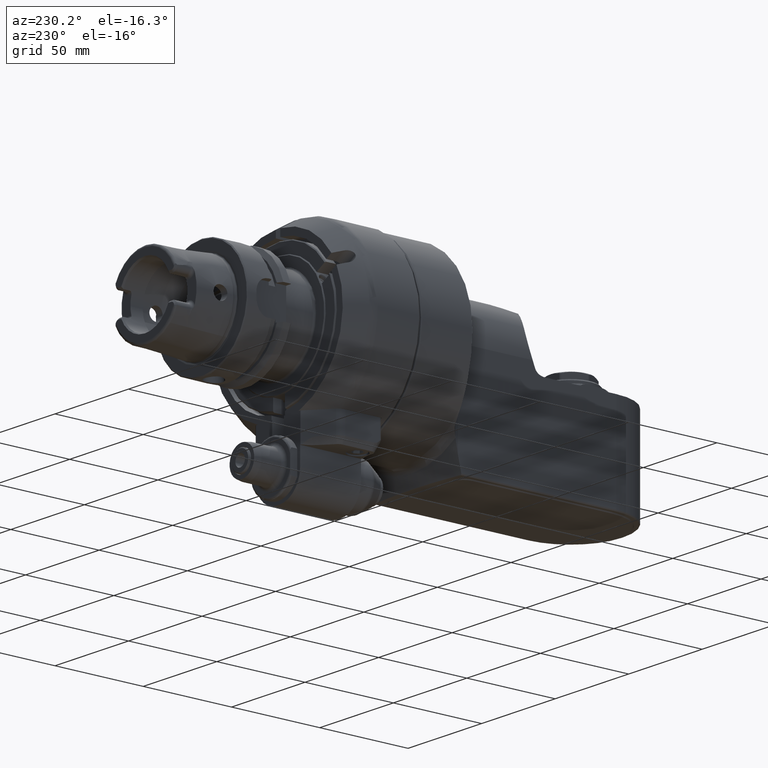
[diagram: clean part render]
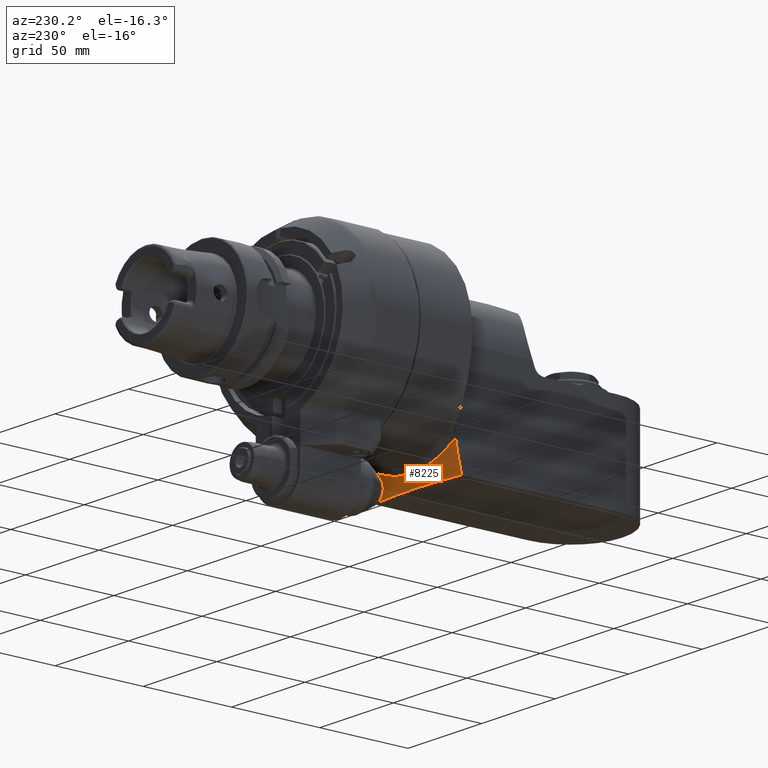
[diagram: same view with one face highlighted and labeled with its STEP entity id]
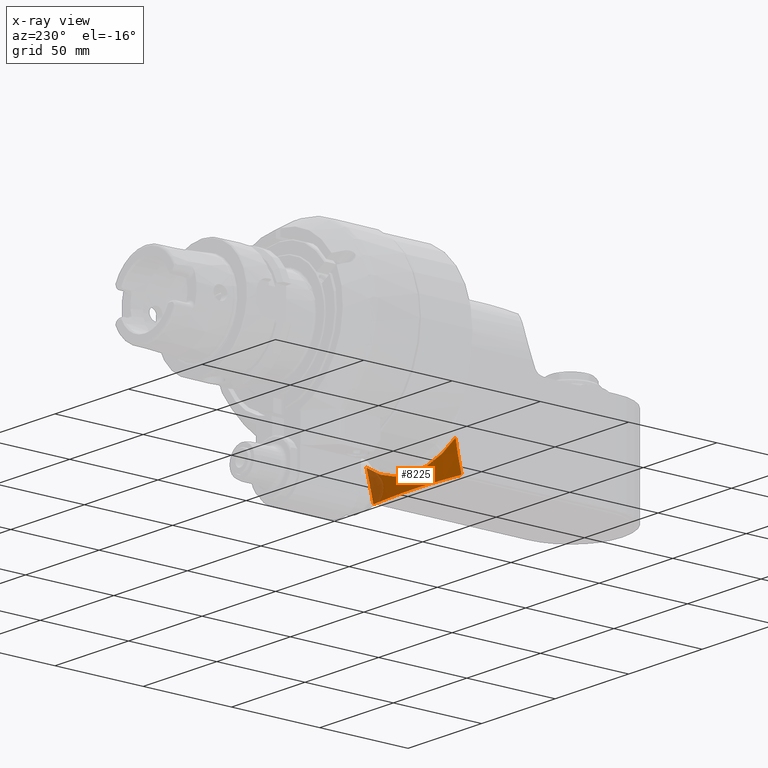
[diagram: x-ray of the same camera — body ghosted, the highlighted face saturated]
A machine part, auxiliary view. The second image highlights one B-rep face of the part: STEP entity #8225.
The next image is the same camera in x-ray: the body ghosted, the highlighted face saturated — about 17% of this face is hidden behind the body in this view.
In plain terms, the highlighted conical surface has half-angle 75 deg.
Its self-contained STEP definition (entity closure, byte-faithful):
#40=(
BOUNDED_CURVE()
B_SPLINE_CURVE(2,(#12277,#12278,#12279),.UNSPECIFIED.,.F.,.F.)
B_SPLINE_CURVE_WITH_KNOTS((3,3),(-20.2216502627518,-18.52143439675),
 .UNSPECIFIED.)
CURVE()
GEOMETRIC_REPRESENTATION_ITEM()
RATIONAL_B_SPLINE_CURVE((1.08247320241685,1.10694018668164,1.12670982661861))
REPRESENTATION_ITEM('')
);
#41=(
BOUNDED_CURVE()
B_SPLINE_CURVE(2,(#12299,#12300,#12301),.UNSPECIFIED.,.F.,.F.)
B_SPLINE_CURVE_WITH_KNOTS((3,3),(-47.954275771217,-47.7092074743288),
 .UNSPECIFIED.)
CURVE()
GEOMETRIC_REPRESENTATION_ITEM()
RATIONAL_B_SPLINE_CURVE((3.55650727515701,3.55962044241568,3.56263502252311))
REPRESENTATION_ITEM('')
);
#42=(
BOUNDED_CURVE()
B_SPLINE_CURVE(2,(#12303,#12304,#12305),.UNSPECIFIED.,.F.,.F.)
B_SPLINE_CURVE_WITH_KNOTS((3,3),(31.6407018756525,33.7809985928058),
 .UNSPECIFIED.)
CURVE()
GEOMETRIC_REPRESENTATION_ITEM()
RATIONAL_B_SPLINE_CURVE((1.16255857113133,1.13492545272164,1.10281010088752))
REPRESENTATION_ITEM('')
);
#43=(
BOUNDED_CURVE()
B_SPLINE_CURVE(2,(#12313,#12314,#12315),.UNSPECIFIED.,.F.,.F.)
B_SPLINE_CURVE_WITH_KNOTS((3,3),(-20.779007426832,-20.6061845153346),
 .UNSPECIFIED.)
CURVE()
GEOMETRIC_REPRESENTATION_ITEM()
RATIONAL_B_SPLINE_CURVE((2.52211351799325,2.5199793916536,2.51777547203307))
REPRESENTATION_ITEM('')
);
#44=(
BOUNDED_CURVE()
B_SPLINE_CURVE(2,(#12316,#12317,#12318),.UNSPECIFIED.,.F.,.F.)
B_SPLINE_CURVE_WITH_KNOTS((3,3),(-64.9448907529112,-37.8298054529915),
 .UNSPECIFIED.)
CURVE()
GEOMETRIC_REPRESENTATION_ITEM()
RATIONAL_B_SPLINE_CURVE((4.47094782298557,4.99029878578708,4.47094782298541))
REPRESENTATION_ITEM('')
);
#168=B_SPLINE_CURVE_WITH_KNOTS('',3,(#12231,#12232,#12233,#12234),
 .UNSPECIFIED.,.F.,.F.,(4,4),(-2.39882871851177,-1.70976940367453),
 .UNSPECIFIED.);
#171=B_SPLINE_CURVE_WITH_KNOTS('',3,(#12307,#12308,#12309,#12310),
 .UNSPECIFIED.,.F.,.F.,(4,4),(5.84413209650797,6.53317184857673),
 .UNSPECIFIED.);
#640=CONICAL_SURFACE('',#8796,59.68815959634,1.30899693899575);
#740=FACE_OUTER_BOUND('',#1231,.T.);
#1231=EDGE_LOOP('',(#5581,#5582,#5583,#5584,#5585,#5586,#5587,#5588));
#2936=CIRCLE('',#8797,52.96472381959);
#3380=VERTEX_POINT('',#12228);
#3381=VERTEX_POINT('',#12230);
#3388=VERTEX_POINT('',#12275);
#3397=VERTEX_POINT('',#12297);
#3398=VERTEX_POINT('',#12298);
#3399=VERTEX_POINT('',#12302);
#3400=VERTEX_POINT('',#12306);
#3401=VERTEX_POINT('',#12312);
#4249=EDGE_CURVE('',#3380,#3381,#168,.T.);
#4258=EDGE_CURVE('',#3380,#3388,#40,.T.);
#4267=EDGE_CURVE('',#3397,#3398,#41,.T.);
#4268=EDGE_CURVE('',#3398,#3399,#42,.T.);
#4269=EDGE_CURVE('',#3400,#3399,#171,.T.);
#4270=EDGE_CURVE('',#3381,#3400,#2936,.T.);
#4271=EDGE_CURVE('',#3388,#3401,#43,.T.);
#4272=EDGE_CURVE('',#3401,#3397,#44,.T.);
#5581=ORIENTED_EDGE('',*,*,#4267,.T.);
#5582=ORIENTED_EDGE('',*,*,#4268,.T.);
#5583=ORIENTED_EDGE('',*,*,#4269,.F.);
#5584=ORIENTED_EDGE('',*,*,#4270,.F.);
#5585=ORIENTED_EDGE('',*,*,#4249,.F.);
#5586=ORIENTED_EDGE('',*,*,#4258,.T.);
#5587=ORIENTED_EDGE('',*,*,#4271,.T.);
#5588=ORIENTED_EDGE('',*,*,#4272,.T.);
#8225=ADVANCED_FACE('',(#740),#640,.T.);
#8796=AXIS2_PLACEMENT_3D('',#12296,#9800,#9801);
#8797=AXIS2_PLACEMENT_3D('',#12311,#9802,#9803);
#9800=DIRECTION('center_axis',(1.,0.,0.));
#9801=DIRECTION('ref_axis',(0.,1.,1.88239493877847E-8));
#9802=DIRECTION('center_axis',(-1.,0.,0.));
#9803=DIRECTION('ref_axis',(0.,1.,0.));
#12228=CARTESIAN_POINT('',(41.3398197361523,50.492219995972,29.9999405506243));
#12230=CARTESIAN_POINT('',(39.7943946149184,43.4342137602105,30.3105718071315));
#12231=CARTESIAN_POINT('Ctrl Pts',(41.3397723724959,50.492230906416,30.0000000000872));
#12232=CARTESIAN_POINT('Ctrl Pts',(40.7864795364064,48.0903385617824,29.9999963469248));
#12233=CARTESIAN_POINT('Ctrl Pts',(40.2622960522071,45.7003796820435,30.114585774233));
#12234=CARTESIAN_POINT('Ctrl Pts',(39.7943944305156,43.4342137015527,30.3105706886235));
#12275=CARTESIAN_POINT('',(43.3378623998883,59.0000000009116,29.9999999996263));
#12277=CARTESIAN_POINT('Ctrl Pts',(41.3397723724811,50.4922309064034,30.));
#12278=CARTESIAN_POINT('Ctrl Pts',(42.2611895560662,54.4921866894395,30.));
#12279=CARTESIAN_POINT('Ctrl Pts',(43.3378623997195,59.0000000009519,30.));
#12296=CARTESIAN_POINT('Origin',(41.59593451256,0.,0.));
#12297=CARTESIAN_POINT('',(43.3974736993,59.5,-29.5));
#12298=CARTESIAN_POINT('',(43.3378623998883,59.0000000009117,-29.9999999996262));
#12299=CARTESIAN_POINT('Ctrl Pts',(43.3974736993046,59.4999999999996,-29.5000000000003));
#12300=CARTESIAN_POINT('Ctrl Pts',(43.3671628689316,59.2495805599199,-29.7504194400801));
#12301=CARTESIAN_POINT('Ctrl Pts',(43.3378623995697,59.0000000006614,-29.9999999993386));
#12302=CARTESIAN_POINT('',(41.3397291357277,50.4921914898967,-29.9999516932181));
#12303=CARTESIAN_POINT('Ctrl Pts',(43.3378623997196,59.0000000009519,-30.));
#12304=CARTESIAN_POINT('Ctrl Pts',(42.2611839383172,54.4921631690508,-30.));
#12305=CARTESIAN_POINT('Ctrl Pts',(41.3397627123332,50.4921889708181,-30.));
#12306=CARTESIAN_POINT('',(39.7943950008856,43.4342160825921,-30.3105709962616));
#12307=CARTESIAN_POINT('Ctrl Pts',(39.7943949165998,43.4342160557813,-30.3105704850227));
#12308=CARTESIAN_POINT('Ctrl Pts',(40.2622847398455,45.7003247920321,-30.11459058498));
#12309=CARTESIAN_POINT('Ctrl Pts',(40.7864505135127,48.0902062370503,-30.0000027857144));
#12310=CARTESIAN_POINT('Ctrl Pts',(41.33972582272,50.492028829522,-30.0000000000507));
#12311=CARTESIAN_POINT('Origin',(39.79439532582,0.,0.));
#12312=CARTESIAN_POINT('',(43.3974736993,59.5,29.49999999999));
#12313=CARTESIAN_POINT('Ctrl Pts',(43.3378623995697,59.0000000006614,29.9999999993387));
#12314=CARTESIAN_POINT('Ctrl Pts',(43.3671628689319,59.2495805599224,29.7504194400777));
#12315=CARTESIAN_POINT('Ctrl Pts',(43.3974736993052,59.5000000000047,29.4999999999954));
#12316=CARTESIAN_POINT('Ctrl Pts',(43.3974736993033,59.5,29.499999999989));
#12317=CARTESIAN_POINT('Ctrl Pts',(39.8862979264123,59.5,-3.95417032450496E-12));
#12318=CARTESIAN_POINT('Ctrl Pts',(43.3974736993045,59.5,-29.4999999999988));